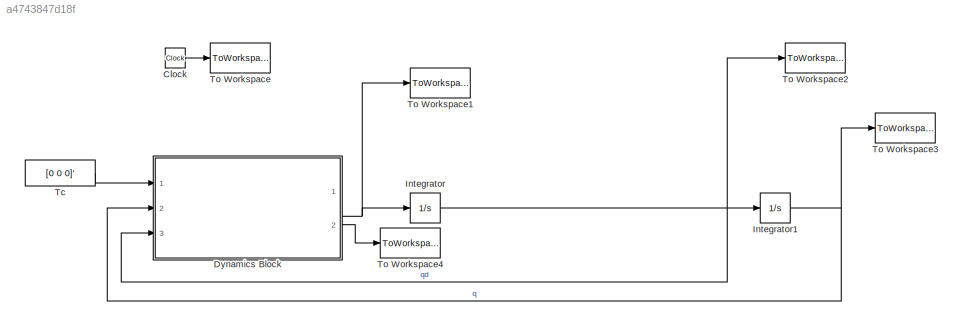
MODEL slx_a4743847d18f
KIND model
CONFIG AbsTol = auto
CONFIG EnableMultiTasking = off
CONFIG FixedStep = auto
CONFIG MaxStep = auto
CONFIG MinStep = auto
CONFIG RelTol = auto
CONFIG SampleTimeConstraint = Unconstrained
CONFIG Solver = VariableStepAuto
CONFIG SolverName = VariableStepAuto
CONFIG StartTime = 0.0
CONFIG StopTime = 10
BLOCK [Clock] Clock
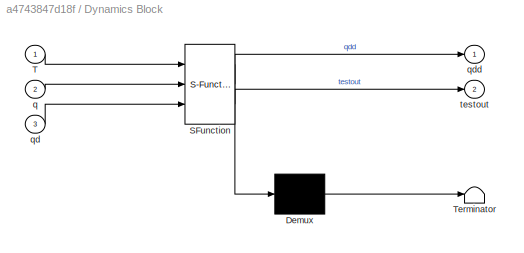
BLOCK [SubSystem] Dynamics Block
  ErrorFcn = Stateflow.Translate.translate
  PermitHierarchicalResolution = ExplicitOnly
  Ports = [3, 2]
  RequestExecContextInheritance = off
  SFBlockType = MATLAB Function
  TreatAsAtomicUnit = on
BLOCK [Demux] Dynamics Block/ Demux 
  Outputs = 1
  Ports = [1, 1]
BLOCK [S-Function] Dynamics Block/ SFunction 
  EnableBusSupport = on
  FunctionName = sf_sfun
  Parameters = J
  PortCounts = [3 3]
  Ports = [3, 3]
  SFcnIsStateOwnerBlock = off
  SFunctionDeploymentMode = off
  Tag = Stateflow S-Function tumbling_sim_v4 2
BLOCK [Terminator] Dynamics Block/ Terminator 
BLOCK [Inport] Dynamics Block/T
  IconDisplay = Port number
BLOCK [Inport] Dynamics Block/q
  IconDisplay = Port number
  Port = 2
BLOCK [Inport] Dynamics Block/qd
  IconDisplay = Port number
  Port = 3
BLOCK [Outport] Dynamics Block/qdd
  IconDisplay = Port number
BLOCK [Outport] Dynamics Block/testout
  IconDisplay = Port number
  Port = 2
BLOCK [Integrator] Integrator
  InitialCondition = qd0
  Ports = [1, 1]
BLOCK [Integrator] Integrator1
  InitialCondition = q0
  Ports = [1, 1]
BLOCK [Constant] Tc
  Value = [0 0 0]'
BLOCK [ToWorkspace] To Workspace
  MaxDataPoints = inf
  Ports = [1]
  SampleTime = -1
  VariableName = t
BLOCK [ToWorkspace] To Workspace1
  MaxDataPoints = inf
  Ports = [1]
  SampleTime = -1
  VariableName = qdd
BLOCK [ToWorkspace] To Workspace2
  MaxDataPoints = inf
  Ports = [1]
  SampleTime = -1
  VariableName = qd
BLOCK [ToWorkspace] To Workspace3
  MaxDataPoints = inf
  Ports = [1]
  SampleTime = -1
  VariableName = q
BLOCK [ToWorkspace] To Workspace4
  MaxDataPoints = inf
  Ports = [1]
  SampleTime = -1
  VariableName = testout
LINE Clock:1 -> To Workspace:1
NET Dynamics Block:1 -> Integrator:1, To Workspace1:1
LINE Dynamics Block:2 -> To Workspace4:1
NET Integrator1:1 -> Dynamics Block:2, To Workspace3:1
NET Integrator:1 -> Dynamics Block:3, Integrator1:1, To Workspace2:1
LINE Tc:1 -> Dynamics Block:1
note: NET lines group one-source signal fan-out (src -> all destinations, sorted); 1:1 wires keep LINE
CHART Dynamics Block states=1 transitions=1
  STATE_LABEL 'eML_blk_kernel()'
  STATE_LABEL "SCRIPT:\nfunction [qdd, testout] = tumbling_dynamics(T, q, qd, J)\n\nH = 2*[-q(2) q(1) q(4) -q(3);\n       -q(3) -q(4) q(1) q(2);\n       -q(4) q(3) -q(2) q(1)];\n\nqdd = (H'*J*H)\\H'*(T-cross(H*qd,J*H*qd))-(q*q')\\q*(qd')*qd;\ntestout = norm(q);"
